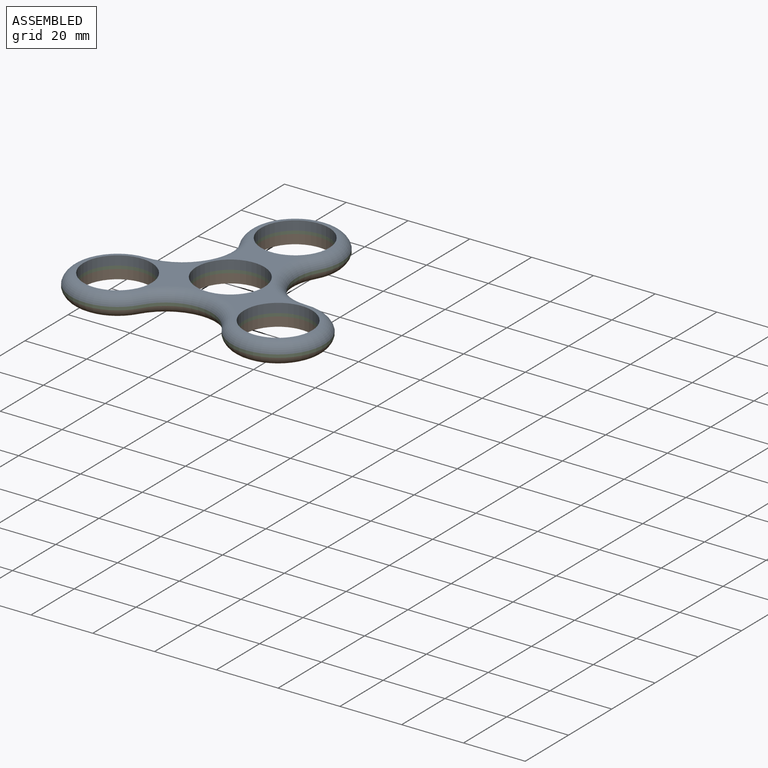
[diagram: assembled view]
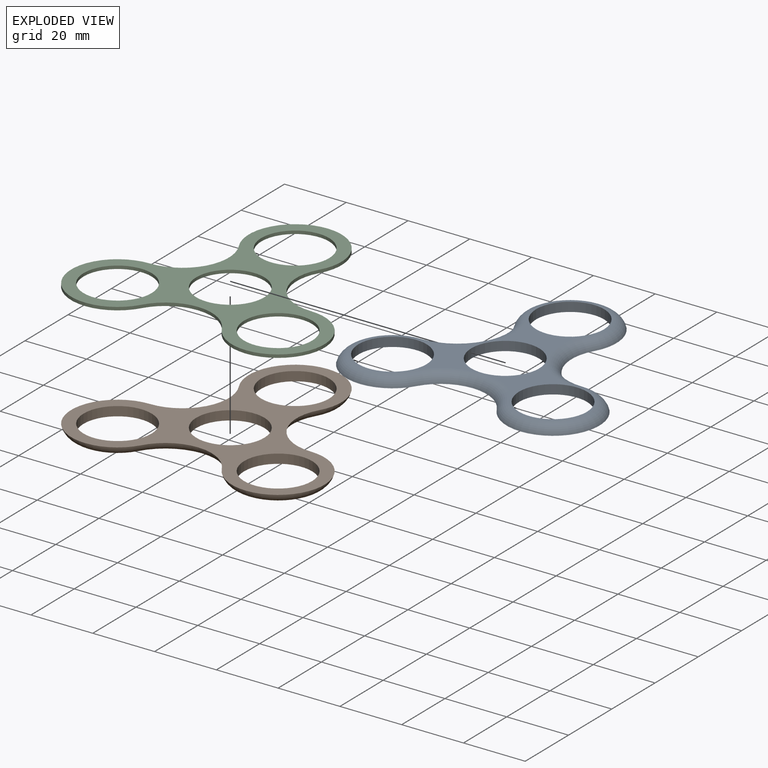
[diagram: exploded view]
GUIDED TOUR — MATED ASSEMBLY (Onshape document c477a46eb7a3cc248fa84126, AutoMate assembly c477a46eb7a3cc248fa84126_535e87d48a3a73398abf7082_03ba718641e59ecbc72099c7_default)

This assembly has 3 components, labeled P0..P2 below (a component is one placed occurrence of a part; the same part can appear more than once), held together by 1 mate. A mate is a constraint between two components; its type names the relative motion it leaves free:
  FASTENED — locks the two components together rigidly (no relative motion).
Axis/direction vectors are unit vectors and 'through' points are millimeter coordinates, both in the assembly's world frame.

MATES
  1. FASTENED "Fastened 1": P1 <-> P2, direction (0.000, 0.000, 1.000) through (1.67, -1.66, 5.81) mm

ASSEMBLY ORDER
  1. P2 — the base component [order verified]
  2. P1 [order verified]
  3. P0 [order verified]
Order-tag legend:
  [order verified] — this step's position reverses a verified removal order: the component was checked to insert without passing through the ones already placed.

Of the 3 components, 3 carry the full construction recipe — the FeatureScript program that regenerates the part's solid from scratch; the rest are supplied as boundary geometry only.
Each toured component is shown spotlighted twice — in the assembled view, then in the exploded view, where a leader line traces a displaced component back to its assembled socket (saturated green if recipe-attached, orange if geometry-only; every other component desaturated gray) — followed by its recipe or geometry summary and the mates that hold it.
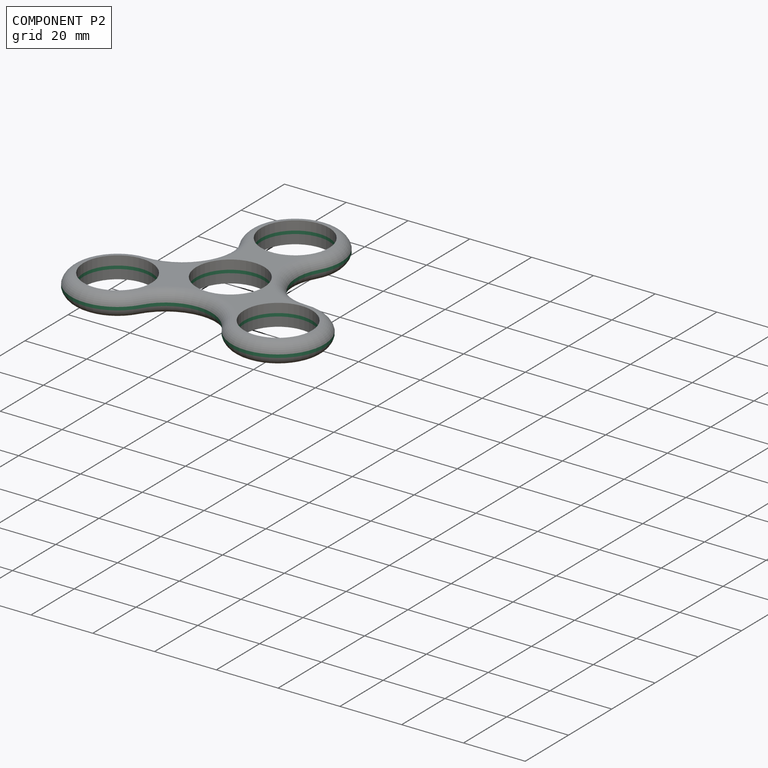
[diagram: component P2 — assembled]
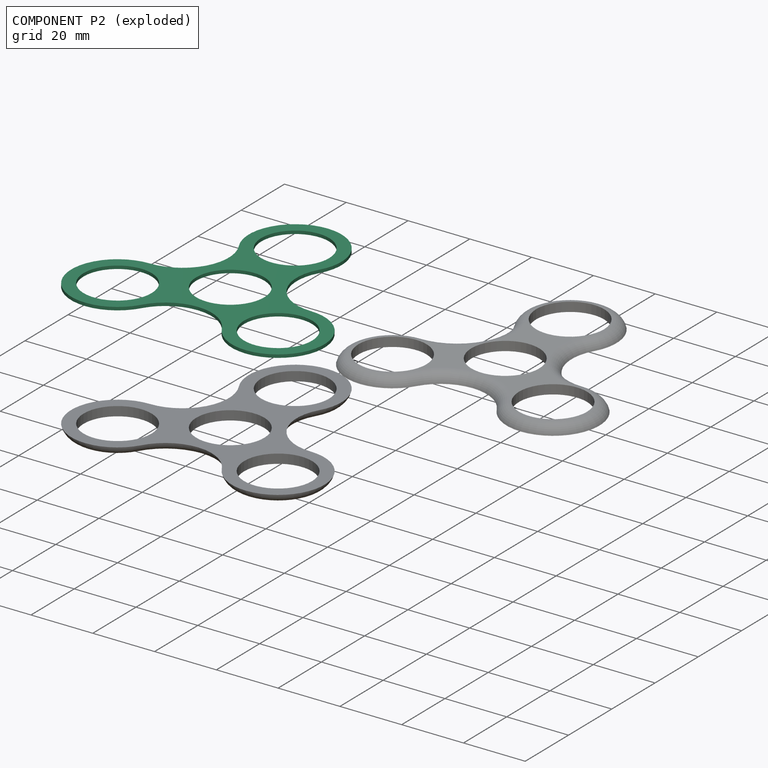
[diagram: component P2 — exploded]
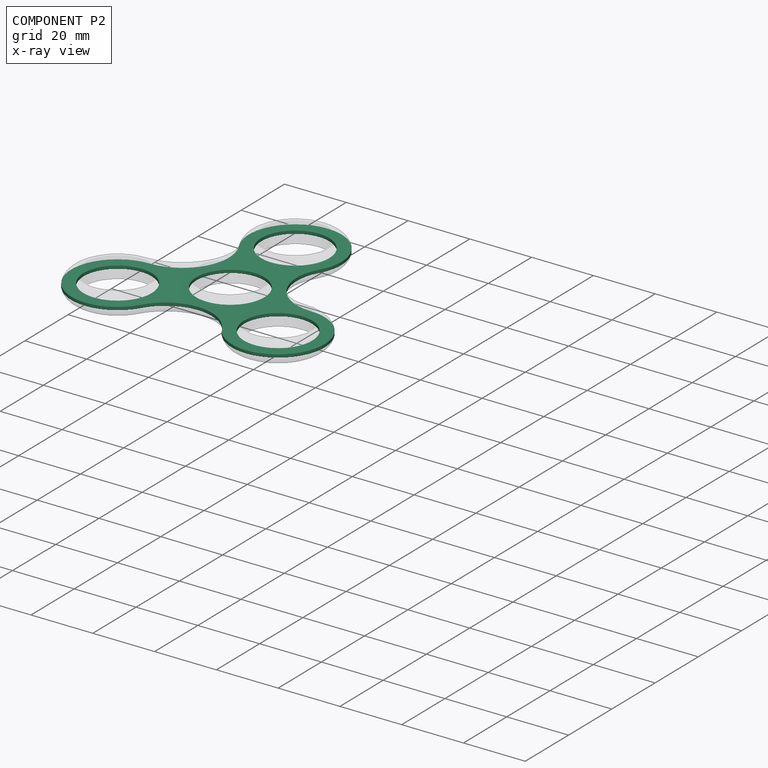
[diagram: component P2 — x-ray view]
COMPONENT P2 — recipe-attached (CADFS 00934094, mesh-verified: the recipe's output STEP matches this component's geometry to below the mesh-comparison resolution (tessellation chordal tolerance ~0.167 mm)).
Held by: FASTENED mate "Fastened 1" to P1.
Construction recipe (FeatureScript — the CAD program that rebuilds this solid; sketch coordinates are in the units given by the * unit suffixes, e.g. mm):

FeatureScript 1511;
import(path : "onshape/std/geometry.fs", version : "1511.0");
import(path : "onshape/std/common.fs", version : "1511.0");
const mm = millimeter;
const VERTEX = EntityType.VERTEX;
const EDGE = EntityType.EDGE;
const FACE = EntityType.FACE;
const BODY = EntityType.BODY;
function v(x, y){return vector(x, y);}
function OD(order){return orderDisambiguation(order);}
function OSD(set){return originalSetDisambiguation(set);}
function TD(topology){return topologyDisambiguation(topology);}
function TDD(query){return trueDependencyDisambiguation(query);}
function sQuery(a, b, c) {return sketchEntityQuery(a, b, c);}

annotation { "Feature Type Name" : "Feature", "Feature Type Description" : "" }
export const myFeature = defineFeature(function(context is Context, id is Id, definition is map)
    precondition{}
    {
        {
            var Q0;
            Q0=qCreatedBy(makeId("Top.planeOp"),FACE);
            var sketch = newSketch(context, id + "F0", { "sketchPlane" : qUnion([Q0])});
            skLineSegment(sketch, "E0.0", {"start": v(0, 30) * mm, "end": v(25.98, -15) * mm, "construction": true});
            skLineSegment(sketch, "E0.1", {"start": v(25.98, -15) * mm, "end": v(-25.98, -15) * mm, "construction": true});
            skLineSegment(sketch, "E0.2", {"start": v(-25.98, -15) * mm, "end": v(0, 30) * mm, "construction": true});
            skCircle(sketch, "E1", {"center": v(0, 30) * mm, "radius": 11 * mm});
            skCircle(sketch, "E2", {"center": v(25.98, -15) * mm, "radius": 11 * mm});
            skCircle(sketch, "E3", {"center": v(-25.98, -15) * mm, "radius": 11 * mm});
            skLineSegment(sketch, "E4", {"start": v(-25.98, -15) * mm, "end": v(0, 0) * mm, "construction": true});
            skLineSegment(sketch, "E5", {"start": v(0, 0) * mm, "end": v(25.98, -15) * mm, "construction": true});
            skLineSegment(sketch, "E6", {"start": v(0, 0) * mm, "end": v(0, 30) * mm, "construction": true});
            skCircle(sketch, "E7", {"center": v(0, 0) * mm, "radius": 11 * mm});
            skCircle(sketch, "E8", {"center": v(0, 30) * mm, "radius": 15 * mm});
            skCircle(sketch, "E9", {"center": v(25.98, -15) * mm, "radius": 15 * mm});
            skCircle(sketch, "E10", {"center": v(-25.98, -15) * mm, "radius": 15 * mm});
            skLineSegment(sketch, "E11", {"start": v(0, 0) * mm, "end": v(-13, 7.5) * mm, "construction": true});
            skLineSegment(sketch, "E12", {"start": v(0, 0) * mm, "end": v(13, 7.5) * mm, "construction": true});
            skLineSegment(sketch, "E13", {"start": v(0, 0) * mm, "end": v(0, -15) * mm, "construction": true});
            skArc(sketch, "E14", {"start": v(-25.98, 0) * mm, "mid": v(-13, 7.5) * mm, "end": v(-13, 22.5) * mm});
            skPoint(sketch, "E14.second.point", {"position": v(-13, 22.5) * mm});
            skPoint(sketch, "E14.third.point", {"position": v(-25.98, 0) * mm});
            skArc(sketch, "E15", {"start": v(13, 22.5) * mm, "mid": v(13, 7.5) * mm, "end": v(25.98, 0) * mm});
            skPoint(sketch, "E15.second.point", {"position": v(13, 22.5) * mm});
            skPoint(sketch, "E15.third.point", {"position": v(25.98, 0) * mm});
            skArc(sketch, "E16", {"start": v(13, -22.5) * mm, "mid": v(0, -15) * mm, "end": v(-13, -22.5) * mm});
            skPoint(sketch, "E16.second.point", {"position": v(-13, -22.5) * mm});
            skPoint(sketch, "E16.third.point", {"position": v(13, -22.5) * mm});
            skSolve(sketch);
        }
        {
            var Q0;
            Q0=makeQuery(id+"F0.imprint","IMPRINT",FACE,{"disambiguationData":[TD([[makeQuery(id+"F0.imprint","IMPRINT",EDGE,{"derivedFrom":sQuery(id+"F0.wireOp",EDGE,"E3")}),-1.0]])]});
            var Q1;
            Q1=makeQuery(id+"F0.imprint","IMPRINT",FACE,{"disambiguationData":[TD([[makeQuery(id+"F0.imprint","IMPRINT",EDGE,{"derivedFrom":sQuery(id+"F0.wireOp",EDGE,"E7")}),-1.0]])]});
            var Q2;
            Q2=makeQuery(id+"F0.imprint","IMPRINT",FACE,{"disambiguationData":[TD([[makeQuery(id+"F0.imprint","IMPRINT",EDGE,{"derivedFrom":sQuery(id+"F0.wireOp",EDGE,"E2")}),-1.0]])]});
            var Q3;
            Q3=makeQuery(id+"F0.imprint","IMPRINT",FACE,{"disambiguationData":[TD([[makeQuery(id+"F0.imprint","IMPRINT",EDGE,{"derivedFrom":sQuery(id+"F0.wireOp",EDGE,"E1")}),-1.0]])]});
            extrude(context, id + "F1", {"entities" : qUnion([Q0, Q1, Q2, Q3]), "depth" : 1 * mm, "offsetDistance" : 25 * mm});
        }
    });
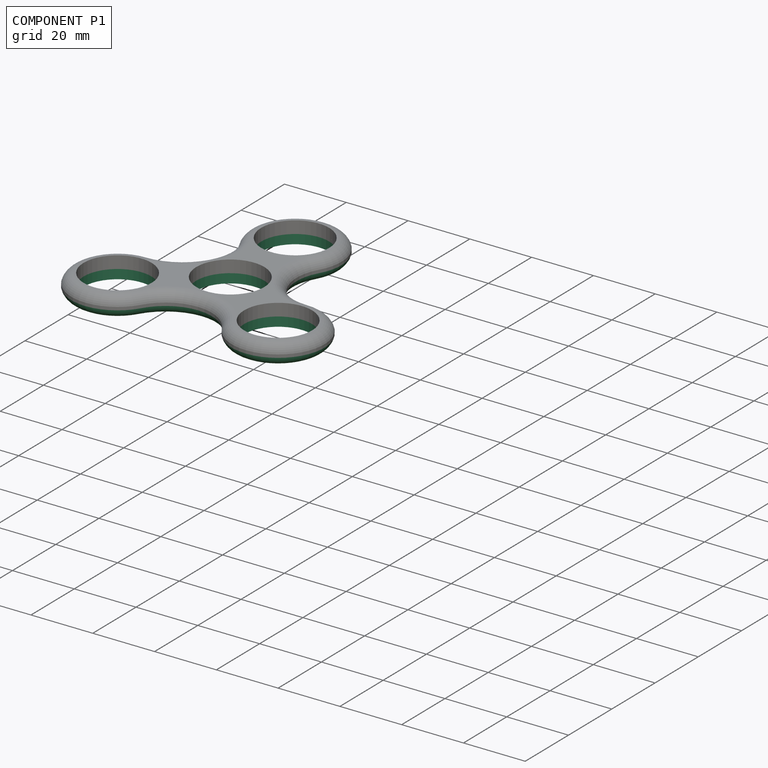
[diagram: component P1 — assembled]
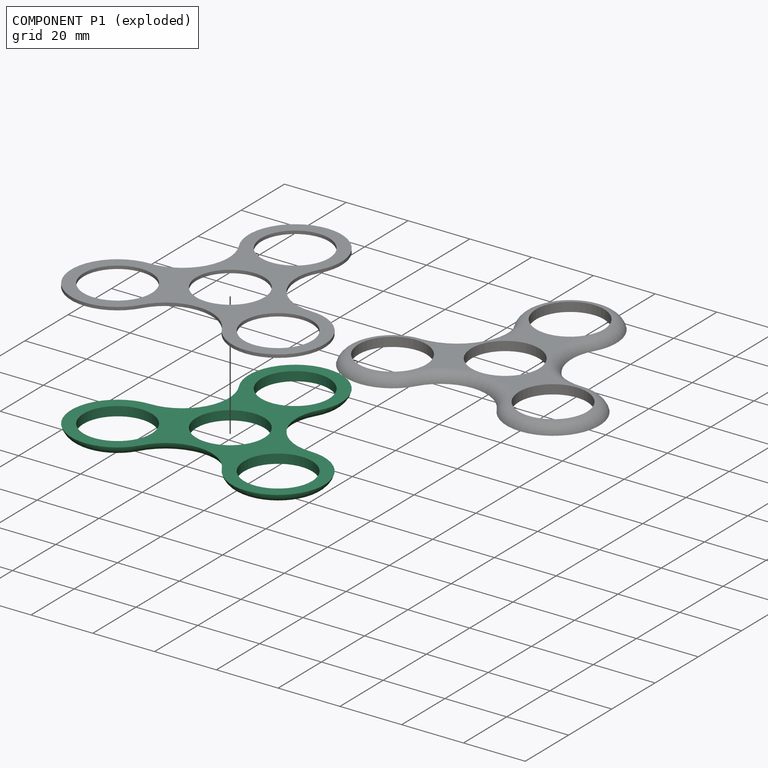
[diagram: component P1 — exploded]
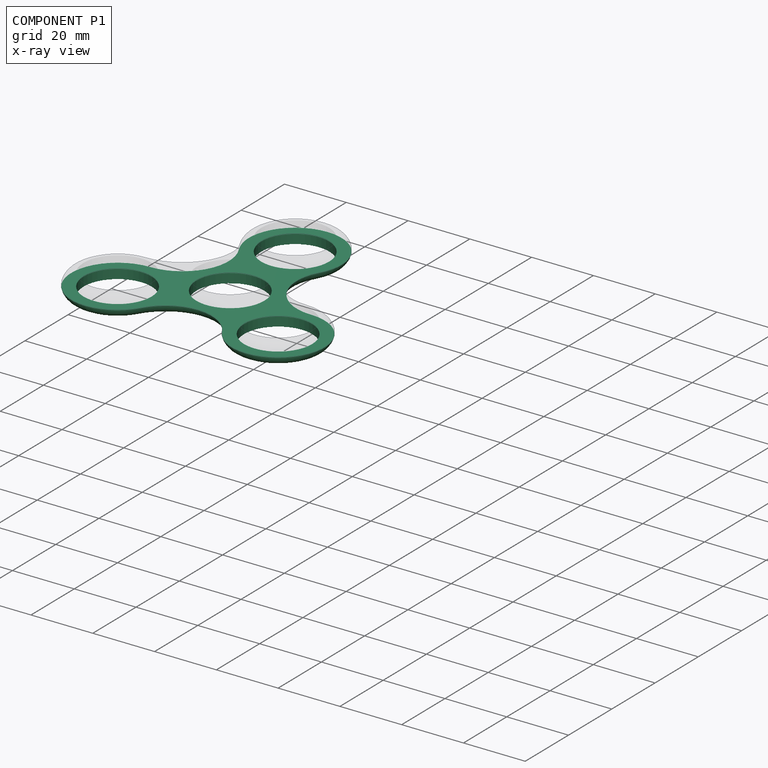
[diagram: component P1 — x-ray view]
COMPONENT P1 — same part as P0 (CADFS 00934093); its construction recipe is shown at P0.
Held by: FASTENED mate "Fastened 1" to P2.
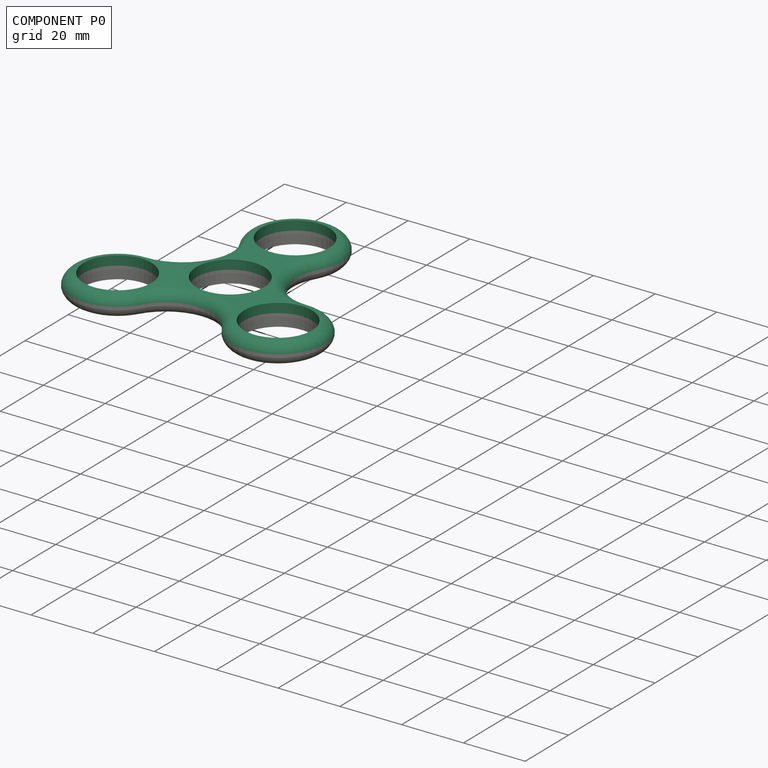
[diagram: component P0 — assembled]
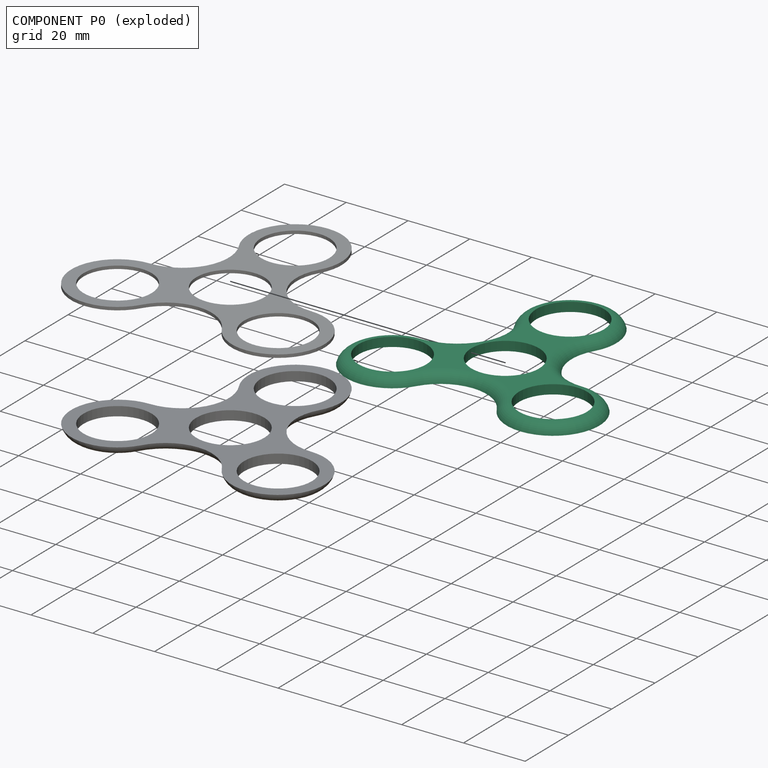
[diagram: component P0 — exploded]
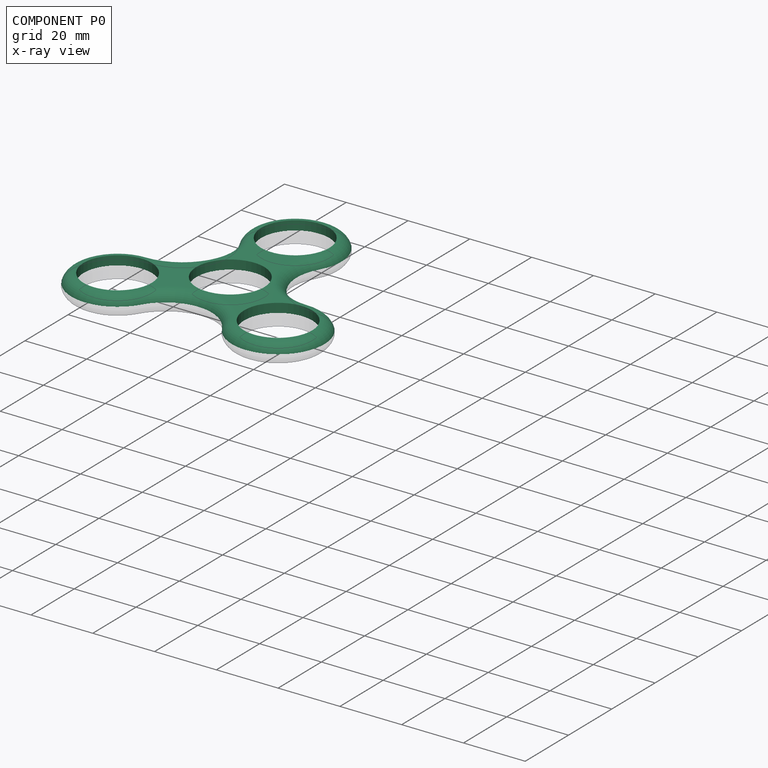
[diagram: component P0 — x-ray view]
COMPONENT P0 — recipe-attached (CADFS 00934093, mesh-verified: the recipe's output STEP matches this component's geometry to below the mesh-comparison resolution (tessellation chordal tolerance ~0.167 mm)).
Held by: no mates (free).
Construction recipe (FeatureScript — the CAD program that rebuilds this solid; sketch coordinates are in the units given by the * unit suffixes, e.g. mm):

FeatureScript 1511;
import(path : "onshape/std/geometry.fs", version : "1511.0");
import(path : "onshape/std/common.fs", version : "1511.0");
const mm = millimeter;
const VERTEX = EntityType.VERTEX;
const EDGE = EntityType.EDGE;
const FACE = EntityType.FACE;
const BODY = EntityType.BODY;
function v(x, y){return vector(x, y);}
function OD(order){return orderDisambiguation(order);}
function OSD(set){return originalSetDisambiguation(set);}
function TD(topology){return topologyDisambiguation(topology);}
function TDD(query){return trueDependencyDisambiguation(query);}
function sQuery(a, b, c) {return sketchEntityQuery(a, b, c);}

annotation { "Feature Type Name" : "Feature", "Feature Type Description" : "" }
export const myFeature = defineFeature(function(context is Context, id is Id, definition is map)
    precondition{}
    {
        {
            var Q0;
            Q0=qCreatedBy(makeId("Top.planeOp"),FACE);
            var sketch = newSketch(context, id + "F0", { "sketchPlane" : qUnion([Q0])});
            skLineSegment(sketch, "E0.0", {"start": v(0, 30) * mm, "end": v(25.98, -15) * mm, "construction": true});
            skLineSegment(sketch, "E0.1", {"start": v(25.98, -15) * mm, "end": v(-25.98, -15) * mm, "construction": true});
            skLineSegment(sketch, "E0.2", {"start": v(-25.98, -15) * mm, "end": v(0, 30) * mm, "construction": true});
            skCircle(sketch, "E1", {"center": v(0, 30) * mm, "radius": 11 * mm});
            skCircle(sketch, "E2", {"center": v(25.98, -15) * mm, "radius": 11 * mm});
            skCircle(sketch, "E3", {"center": v(-25.98, -15) * mm, "radius": 11 * mm});
            skLineSegment(sketch, "E4", {"start": v(-25.98, -15) * mm, "end": v(0, 0) * mm, "construction": true});
            skLineSegment(sketch, "E5", {"start": v(0, 0) * mm, "end": v(25.98, -15) * mm, "construction": true});
            skLineSegment(sketch, "E6", {"start": v(0, 0) * mm, "end": v(0, 30) * mm, "construction": true});
            skCircle(sketch, "E7", {"center": v(0, 0) * mm, "radius": 11 * mm});
            skCircle(sketch, "E8", {"center": v(0, 30) * mm, "radius": 15 * mm});
            skCircle(sketch, "E9", {"center": v(25.98, -15) * mm, "radius": 15 * mm});
            skCircle(sketch, "E10", {"center": v(-25.98, -15) * mm, "radius": 15 * mm});
            skLineSegment(sketch, "E11", {"start": v(0, 0) * mm, "end": v(-13, 7.5) * mm, "construction": true});
            skLineSegment(sketch, "E12", {"start": v(0, 0) * mm, "end": v(13, 7.5) * mm, "construction": true});
            skLineSegment(sketch, "E13", {"start": v(0, 0) * mm, "end": v(0, -15) * mm, "construction": true});
            skArc(sketch, "E14", {"start": v(-25.98, 0) * mm, "mid": v(-13, 7.5) * mm, "end": v(-13, 22.5) * mm});
            skPoint(sketch, "E14.second.point", {"position": v(-13, 22.5) * mm});
            skPoint(sketch, "E14.third.point", {"position": v(-25.98, 0) * mm});
            skArc(sketch, "E15", {"start": v(13, 22.5) * mm, "mid": v(13, 7.5) * mm, "end": v(25.98, 0) * mm});
            skPoint(sketch, "E15.second.point", {"position": v(13, 22.5) * mm});
            skPoint(sketch, "E15.third.point", {"position": v(25.98, 0) * mm});
            skArc(sketch, "E16", {"start": v(13, -22.5) * mm, "mid": v(0, -15) * mm, "end": v(-13, -22.5) * mm});
            skPoint(sketch, "E16.second.point", {"position": v(-13, -22.5) * mm});
            skPoint(sketch, "E16.third.point", {"position": v(13, -22.5) * mm});
            skSolve(sketch);
        }
        {
            var Q0;
            Q0=makeQuery(id+"F0.imprint","IMPRINT",FACE,{"disambiguationData":[TD([[makeQuery(id+"F0.imprint","IMPRINT",EDGE,{"derivedFrom":sQuery(id+"F0.wireOp",EDGE,"E1")}),-1.0]])]});
            var Q1;
            Q1=makeQuery(id+"F0.imprint","IMPRINT",FACE,{"disambiguationData":[TD([[makeQuery(id+"F0.imprint","IMPRINT",EDGE,{"derivedFrom":sQuery(id+"F0.wireOp",EDGE,"E7")}),-1.0]])]});
            var Q2;
            Q2=makeQuery(id+"F0.imprint","IMPRINT",FACE,{"disambiguationData":[TD([[makeQuery(id+"F0.imprint","IMPRINT",EDGE,{"derivedFrom":sQuery(id+"F0.wireOp",EDGE,"E3")}),-1.0]])]});
            var Q3;
            Q3=makeQuery(id+"F0.imprint","IMPRINT",FACE,{"disambiguationData":[TD([[makeQuery(id+"F0.imprint","IMPRINT",EDGE,{"derivedFrom":sQuery(id+"F0.wireOp",EDGE,"E2")}),-1.0]])]});
            extrude(context, id + "F1", {"entities" : qUnion([Q0, Q1, Q2, Q3]), "depth" : 3 * mm, "offsetDistance" : 25 * mm});
        }
        {
            var Q0;
            Q0=makeQuery(id+"F1.opExtrude","CAP_EDGE",EDGE,{"disambiguationData":[OSD([sQuery(id+"F0.wireOp",EDGE,"E14")])],"isStart":false});
            fillet(context, id + "F2", {"entities" : qUnion([Q0]), "radius" : 4 * mm, "tangentPropagation" : true, "allowEdgeOverflow" : false});
        }
    });
PROVENANCE & LICENSES
Assembly (occurrences, transforms, mates, per-part STEP geometry): AutoMate dataset, Zenodo record 7776208, CC0.
Construction recipes: CADFS (HuggingFace VladPyatov/CADFS, CC-BY-4.0, layered over the ABC dataset), FeatureScript reconstruction programs keyed by ABC model id.
Join: ABC meta listings map ABC model id -> Onshape documentId; within a shared document, parts are matched by geometric signature (bounding-box dims + volume at 0.1% relative tolerance, exact B-rep face/solid counts).
Verification: 3 of this assembly's 3 components carry a recipe attachment, and every attachment is mesh-verified: the CADFS STEP and the AutoMate member STEP were compared as meshes in their shared local frame (symmetric sampled-point-to-mesh distance); worst across the 3 attachments: below the mesh-comparison resolution (tessellation chordal tolerance ~0.167 mm) on a 111 mm part.
Renders: orthographic iso camera (az 35 / el 25); the floor grid conveys scale (grid pitch printed in each image; no ruler). In the exploded view each component is displaced by its stored offset vector: the offsets alone carry the explosion direction (mate normal/axis signs are not orientation cues and do not encode it), and separation distances are assigned per mate-chain, not proportionally to assembly-order depth.
